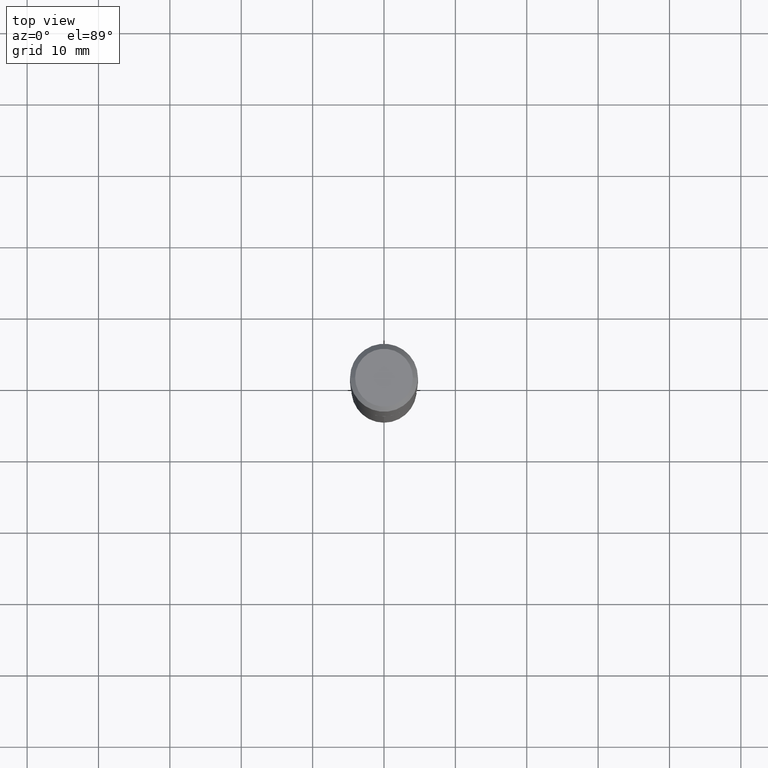
[diagram: clean part render]
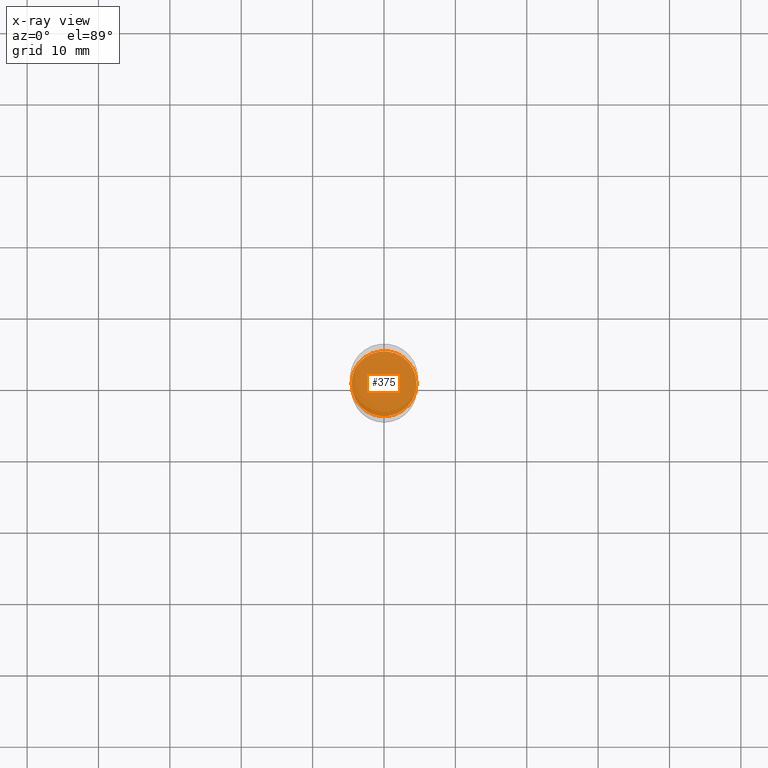
[diagram: x-ray — body ghosted, one internal face saturated and labeled with its STEP entity id]
A machine part, top view, then the same camera in x-ray: the body is ghosted and one INTERNAL B-rep face — a face not visible from any outside direction — is saturated and labeled: STEP entity #375.
In plain terms, the highlighted planar face has unit normal (-0, 0, 1).
Its self-contained STEP definition (entity closure, byte-faithful):
#57 = EDGE_CURVE ( 'NONE', #377, #222, #191, .T. ) ;
#79 = PLANE ( 'NONE',  #163 ) ;
#83 = CARTESIAN_POINT ( 'NONE',  ( 0.1791999999999999982, -8.070908262869809266E-15, -1.953199999999999825 ) ) ;
#89 = CARTESIAN_POINT ( 'NONE',  ( 4.776489672240808724E-29, -6.819561351028431331E-15, -1.953199999999999825 ) ) ;
#112 = EDGE_LOOP ( 'NONE', ( #178, #486 ) ) ;
#114 = CIRCLE ( 'NONE', #355, 0.1791999999999999982 ) ;
#132 = DIRECTION ( 'NONE',  ( 1.000000000000000000, -6.982962677686264344E-15, 0.000000000000000000 ) ) ;
#157 = DIRECTION ( 'NONE',  ( 1.000000000000000000, -6.982962677686264344E-15, 0.000000000000000000 ) ) ;
#163 = AXIS2_PLACEMENT_3D ( 'NONE', #349, #471, #384 ) ;
#170 = DIRECTION ( 'NONE',  ( -2.445468806185136597E-29, 3.491481338843145583E-15, 1.000000000000000000 ) ) ;
#178 = ORIENTED_EDGE ( 'NONE', *, *, #57, .F. ) ;
#191 = CIRCLE ( 'NONE', #262, 0.1791999999999999982 ) ;
#222 = VERTEX_POINT ( 'NONE', #477 ) ;
#243 = EDGE_CURVE ( 'NONE', #222, #377, #114, .T. ) ;
#262 = AXIS2_PLACEMENT_3D ( 'NONE', #89, #270, #157 ) ;
#270 = DIRECTION ( 'NONE',  ( -2.445468806185136597E-29, 3.491481338843145583E-15, 1.000000000000000000 ) ) ;
#349 = CARTESIAN_POINT ( 'NONE',  ( 4.776489672240808724E-29, -6.819561351028431331E-15, -1.953199999999999825 ) ) ;
#355 = AXIS2_PLACEMENT_3D ( 'NONE', #435, #170, #132 ) ;
#375 = ADVANCED_FACE ( 'NONE', ( #460 ), #79, .F. ) ;
#377 = VERTEX_POINT ( 'NONE', #83 ) ;
#384 = DIRECTION ( 'NONE',  ( 1.000000000000000000, -6.982962677686265922E-15, 4.876176775795935793E-29 ) ) ;
#435 = CARTESIAN_POINT ( 'NONE',  ( 4.776489672240808724E-29, -6.819561351028431331E-15, -1.953199999999999825 ) ) ;
#460 = FACE_OUTER_BOUND ( 'NONE', #112, .T. ) ;
#471 = DIRECTION ( 'NONE',  ( -2.438088387897960049E-29, 3.491481338843145188E-15, 1.000000000000000000 ) ) ;
#477 = CARTESIAN_POINT ( 'NONE',  ( -0.1791999999999999982, -5.543619541372220413E-15, -1.953199999999999825 ) ) ;
#486 = ORIENTED_EDGE ( 'NONE', *, *, #243, .F. ) ;